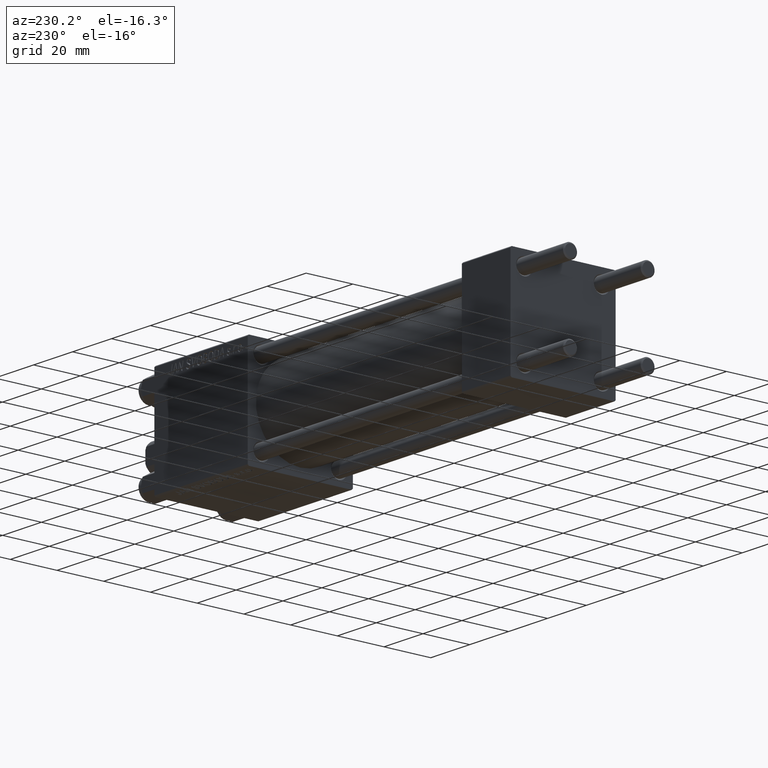
[diagram: clean part render]
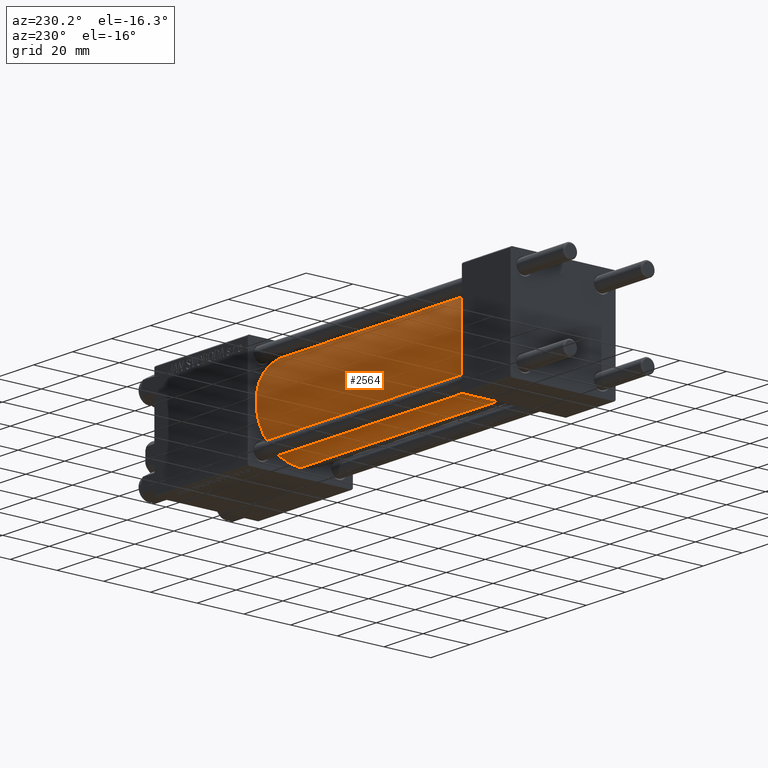
[diagram: same view with one face highlighted and labeled with its STEP entity id]
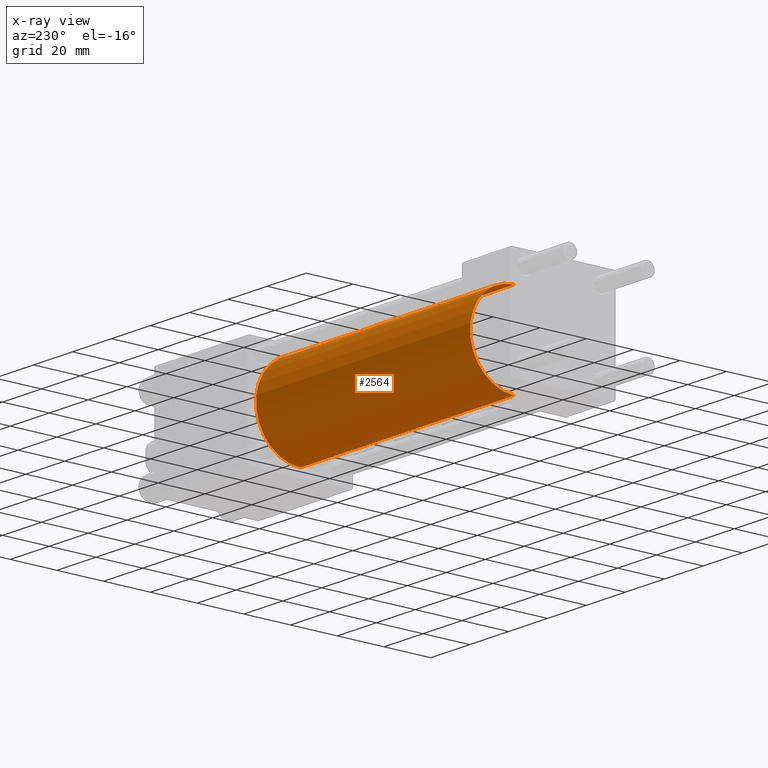
[diagram: x-ray of the same camera — body ghosted, the highlighted face saturated]
A machine part, auxiliary view. The second image highlights one B-rep face of the part: STEP entity #2564.
The next image is the same camera in x-ray: the body ghosted, the highlighted face saturated — about 0% of this face is hidden behind the body in this view.
In plain terms, the highlighted cylindrical surface (partial cylindrical patch) has radius 19 mm, axis along (-1, -0, -0).
Its self-contained STEP definition (entity closure, byte-faithful):
#1298 = AXIS2_PLACEMENT_3D ( 'NONE', #28652, #39996, #32183 ) ;
#1386 = ORIENTED_EDGE ( 'NONE', *, *, #38815, .F. ) ;
#2564 = ADVANCED_FACE ( 'NONE', ( #16818 ), #12772, .T. ) ;
#5500 = CARTESIAN_POINT ( 'NONE',  ( 135.0000000000000000, 0.000000000000000000, 19.00000000000000000 ) ) ;
#5550 = VERTEX_POINT ( 'NONE', #48453 ) ;
#5589 = EDGE_LOOP ( 'NONE', ( #26960, #18220, #9446, #1386 ) ) ;
#6247 = DIRECTION ( 'NONE',  ( -1.000000000000000000, -0.000000000000000000, -0.000000000000000000 ) ) ;
#9099 = LINE ( 'NONE', #35824, #40421 ) ;
#9446 = ORIENTED_EDGE ( 'NONE', *, *, #35251, .T. ) ;
#12772 = CYLINDRICAL_SURFACE ( 'NONE', #1298, 19.00000000000000000 ) ;
#16818 = FACE_OUTER_BOUND ( 'NONE', #5589, .T. ) ;
#17048 = CARTESIAN_POINT ( 'NONE',  ( 24.99999999999999289, 0.000000000000000000, 0.000000000000000000 ) ) ;
#17354 = LINE ( 'NONE', #5500, #39269 ) ;
#17724 = DIRECTION ( 'NONE',  ( 0.000000000000000000, 0.000000000000000000, -1.000000000000000000 ) ) ;
#17932 = EDGE_CURVE ( 'NONE', #44702, #42543, #9099, .T. ) ;
#18192 = AXIS2_PLACEMENT_3D ( 'NONE', #36876, #33849, #17724 ) ;
#18220 = ORIENTED_EDGE ( 'NONE', *, *, #17932, .T. ) ;
#19139 = AXIS2_PLACEMENT_3D ( 'NONE', #17048, #32416, #44513 ) ;
#20978 = CARTESIAN_POINT ( 'NONE',  ( 135.0000000000000000, 2.326828918379970970E-15, -19.00000000000000000 ) ) ;
#24091 = VERTEX_POINT ( 'NONE', #31364 ) ;
#26960 = ORIENTED_EDGE ( 'NONE', *, *, #30838, .F. ) ;
#26998 = CARTESIAN_POINT ( 'NONE',  ( 24.99999999999999289, 2.326828918379970970E-15, -19.00000000000000000 ) ) ;
#28021 = DIRECTION ( 'NONE',  ( -1.000000000000000000, -0.000000000000000000, -0.000000000000000000 ) ) ;
#28652 = CARTESIAN_POINT ( 'NONE',  ( 135.0000000000000000, 0.000000000000000000, 0.000000000000000000 ) ) ;
#30838 = EDGE_CURVE ( 'NONE', #44702, #24091, #35885, .T. ) ;
#31364 = CARTESIAN_POINT ( 'NONE',  ( 135.0000000000000000, 0.000000000000000000, 19.00000000000000000 ) ) ;
#32183 = DIRECTION ( 'NONE',  ( 0.000000000000000000, 0.000000000000000000, 1.000000000000000000 ) ) ;
#32416 = DIRECTION ( 'NONE',  ( 1.000000000000000000, -0.000000000000000000, 0.000000000000000000 ) ) ;
#33849 = DIRECTION ( 'NONE',  ( 1.000000000000000000, 0.000000000000000000, 0.000000000000000000 ) ) ;
#35251 = EDGE_CURVE ( 'NONE', #42543, #5550, #40848, .T. ) ;
#35824 = CARTESIAN_POINT ( 'NONE',  ( 135.0000000000000000, 2.326828918379970970E-15, -19.00000000000000000 ) ) ;
#35885 = CIRCLE ( 'NONE', #18192, 19.00000000000000000 ) ;
#36876 = CARTESIAN_POINT ( 'NONE',  ( 135.0000000000000000, 0.000000000000000000, 0.000000000000000000 ) ) ;
#38815 = EDGE_CURVE ( 'NONE', #24091, #5550, #17354, .T. ) ;
#39269 = VECTOR ( 'NONE', #6247, 1000.000000000000000 ) ;
#39996 = DIRECTION ( 'NONE',  ( -1.000000000000000000, -0.000000000000000000, -0.000000000000000000 ) ) ;
#40421 = VECTOR ( 'NONE', #28021, 1000.000000000000000 ) ;
#40848 = CIRCLE ( 'NONE', #19139, 19.00000000000000000 ) ;
#42543 = VERTEX_POINT ( 'NONE', #26998 ) ;
#44513 = DIRECTION ( 'NONE',  ( 0.000000000000000000, 0.000000000000000000, 1.000000000000000000 ) ) ;
#44702 = VERTEX_POINT ( 'NONE', #20978 ) ;
#48453 = CARTESIAN_POINT ( 'NONE',  ( 24.99999999999999289, 0.000000000000000000, 19.00000000000000000 ) ) ;